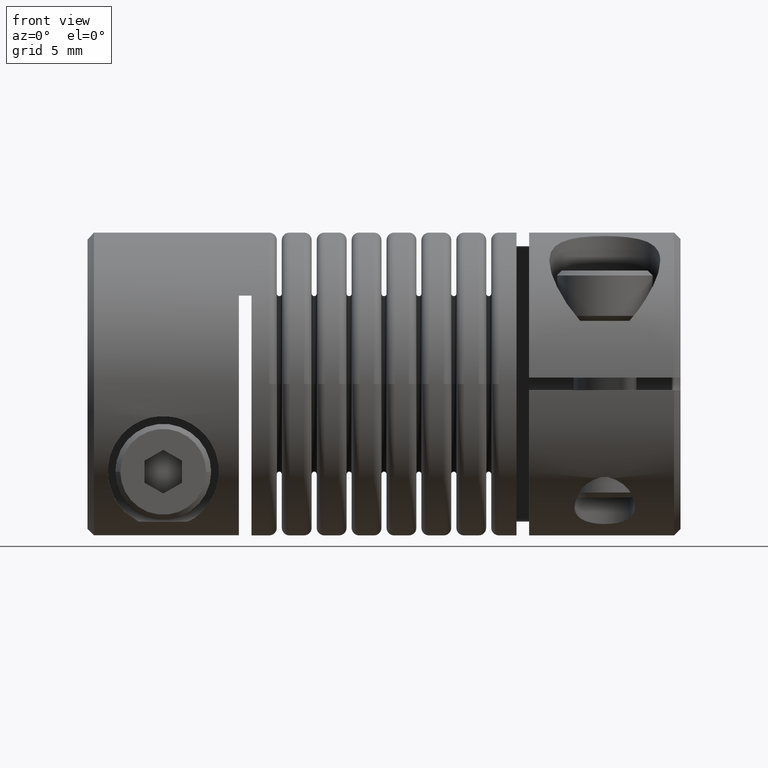
[diagram: clean part render]
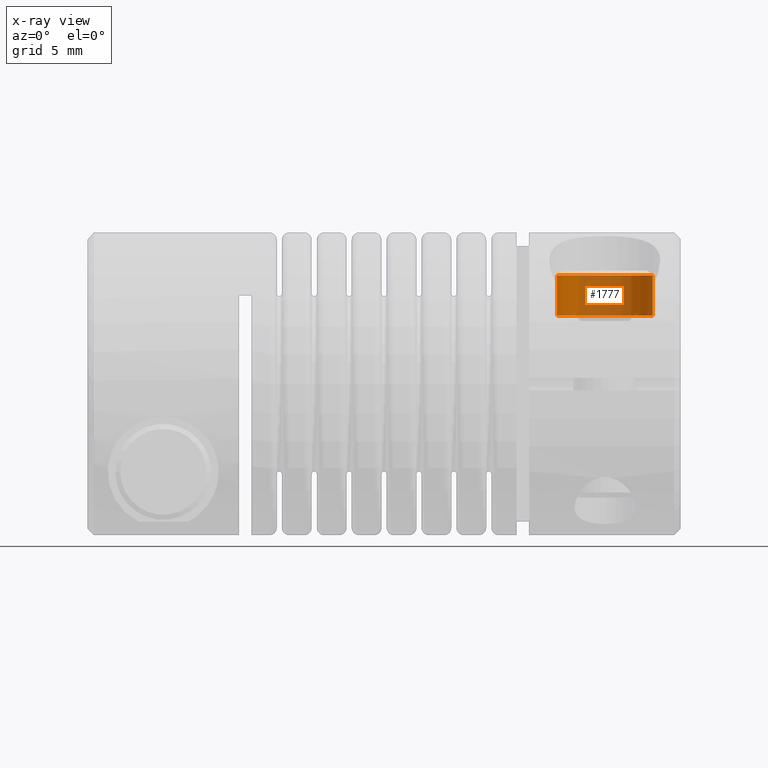
[diagram: x-ray — body ghosted, one internal face saturated and labeled with its STEP entity id]
A machine part, front view, then the same camera in x-ray: the body is ghosted and one INTERNAL B-rep face — a face not visible from any outside direction — is saturated and labeled: STEP entity #1777.
In plain terms, the highlighted cylindrical surface (partial cylindrical patch) has radius 1.9 mm, axis along (-0, -0, -1).
Its self-contained STEP definition (entity closure, byte-faithful):
#949 = ORIENTED_EDGE ( 'NONE', *, *, #1933, .T. ) ;
#950 = ORIENTED_EDGE ( 'NONE', *, *, #1948, .T. ) ;
#951 = ORIENTED_EDGE ( 'NONE', *, *, #1935, .T. ) ;
#952 = ORIENTED_EDGE ( 'NONE', *, *, #1950, .F. ) ;
#1081 = EDGE_LOOP ( 'NONE', ( #949, #950, #951, #952 ) ) ;
#1118 = VERTEX_POINT ( 'NONE', #1373 ) ;
#1120 = VERTEX_POINT ( 'NONE', #1377 ) ;
#1123 = VERTEX_POINT ( 'NONE', #1375 ) ;
#1124 = VERTEX_POINT ( 'NONE', #1379 ) ;
#1373 = CARTESIAN_POINT ( 'NONE',  ( 10.65000000000000200, -3.481517620346378000, 4.300000000000003400 ) ) ;
#1375 = CARTESIAN_POINT ( 'NONE',  ( 6.850000000000000500, -3.481517620346378500, 2.700000000000001100 ) ) ;
#1377 = CARTESIAN_POINT ( 'NONE',  ( 6.850000000000000500, -3.481517620346378500, 4.300000000000003400 ) ) ;
#1379 = CARTESIAN_POINT ( 'NONE',  ( 10.65000000000000200, -3.481517620346378000, 2.700000000000001100 ) ) ;
#1777 = ADVANCED_FACE ( 'NONE', ( #3418 ), #3426, .T. ) ;
#1933 = EDGE_CURVE ( 'NONE', #1120, #1118, #4297, .T. ) ;
#1935 = EDGE_CURVE ( 'NONE', #1124, #1123, #4299, .T. ) ;
#1948 = EDGE_CURVE ( 'NONE', #1118, #1124, #4317, .T. ) ;
#1950 = EDGE_CURVE ( 'NONE', #1120, #1123, #4322, .T. ) ;
#2605 = AXIS2_PLACEMENT_3D ( 'NONE', #3643, #3642, #3638 ) ;
#2727 = AXIS2_PLACEMENT_3D ( 'NONE', #4387, #4388, #4389 ) ;
#2732 = AXIS2_PLACEMENT_3D ( 'NONE', #4393, #4394, #4395 ) ;
#3418 = FACE_OUTER_BOUND ( 'NONE', #1081, .T. ) ;
#3426 = CYLINDRICAL_SURFACE ( 'NONE', #2605, 1.900000000000000600 ) ;
#3638 = DIRECTION ( 'NONE',  ( -1.000000000000000000, 0.0000000000000000000, 0.0000000000000000000 ) ) ;
#3642 = DIRECTION ( 'NONE',  ( -0.0000000000000000000, -0.0000000000000000000, -1.000000000000000000 ) ) ;
#3643 = CARTESIAN_POINT ( 'NONE',  ( 8.750000000000000000, -3.481517620346378500, 4.500000000000001800 ) ) ;
#4297 = CIRCLE ( 'NONE', #2727, 1.900000000000000600 ) ;
#4299 = CIRCLE ( 'NONE', #2732, 1.900000000000000600 ) ;
#4317 = LINE ( 'NONE', #4417, #4319 ) ;
#4319 = VECTOR ( 'NONE', #4427, 1000.000000000000000 ) ;
#4322 = LINE ( 'NONE', #4430, #4323 ) ;
#4323 = VECTOR ( 'NONE', #4431, 1000.000000000000000 ) ;
#4387 = CARTESIAN_POINT ( 'NONE',  ( 8.750000000000000000, -3.481517620346378500, 4.300000000000003400 ) ) ;
#4388 = DIRECTION ( 'NONE',  ( 0.0000000000000000000, 0.0000000000000000000, -1.000000000000000000 ) ) ;
#4389 = DIRECTION ( 'NONE',  ( 1.000000000000000000, 0.0000000000000000000, 0.0000000000000000000 ) ) ;
#4393 = CARTESIAN_POINT ( 'NONE',  ( 8.750000000000000000, -3.481517620346378500, 2.700000000000001100 ) ) ;
#4394 = DIRECTION ( 'NONE',  ( -0.0000000000000000000, -0.0000000000000000000, 1.000000000000000000 ) ) ;
#4395 = DIRECTION ( 'NONE',  ( 1.000000000000000000, 0.0000000000000000000, 0.0000000000000000000 ) ) ;
#4417 = CARTESIAN_POINT ( 'NONE',  ( 10.65000000000000200, -3.481517620346378000, 4.500000000000001800 ) ) ;
#4427 = DIRECTION ( 'NONE',  ( -0.0000000000000000000, -0.0000000000000000000, -1.000000000000000000 ) ) ;
#4430 = CARTESIAN_POINT ( 'NONE',  ( 6.850000000000000500, -3.481517620346378500, 4.500000000000001800 ) ) ;
#4431 = DIRECTION ( 'NONE',  ( -0.0000000000000000000, -0.0000000000000000000, -1.000000000000000000 ) ) ;